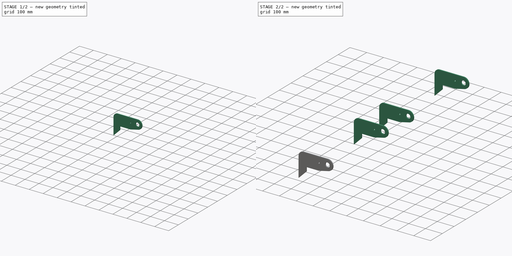
[diagram: build sequence overview — one tinted view per stage of 2, left to right]
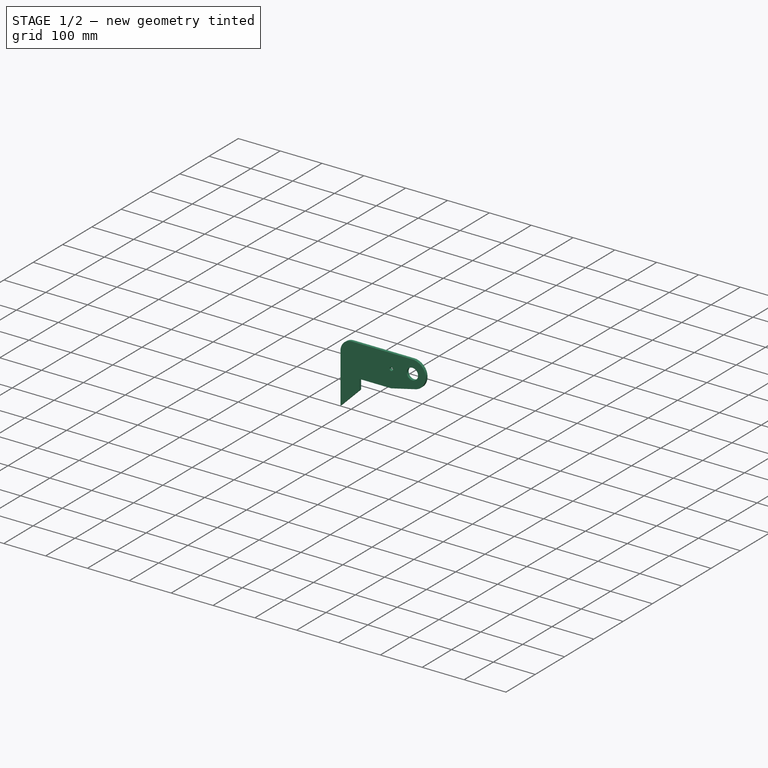
[diagram: stage 1 of 2 — iso view after this stage's code; geometry added in this stage tinted green]
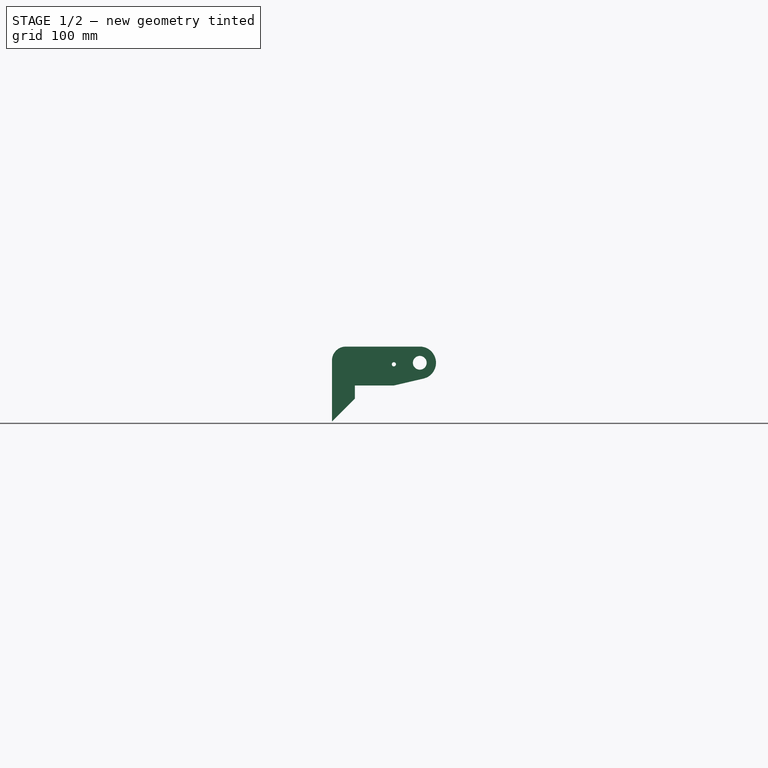
[diagram: stage 1 of 2 — front view after this stage's code; geometry added in this stage tinted green]
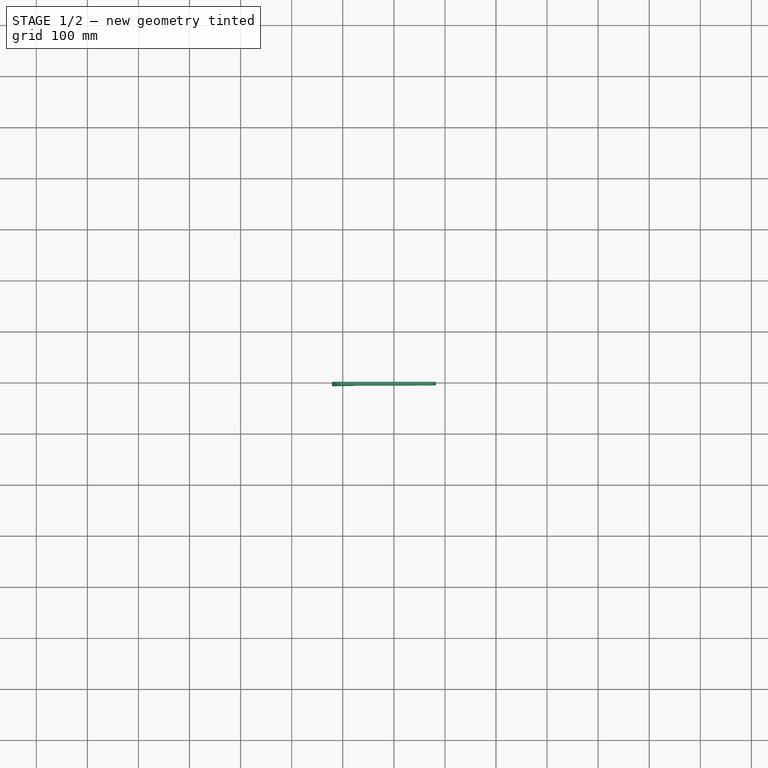
[diagram: stage 1 of 2 — top view after this stage's code; geometry added in this stage tinted green]
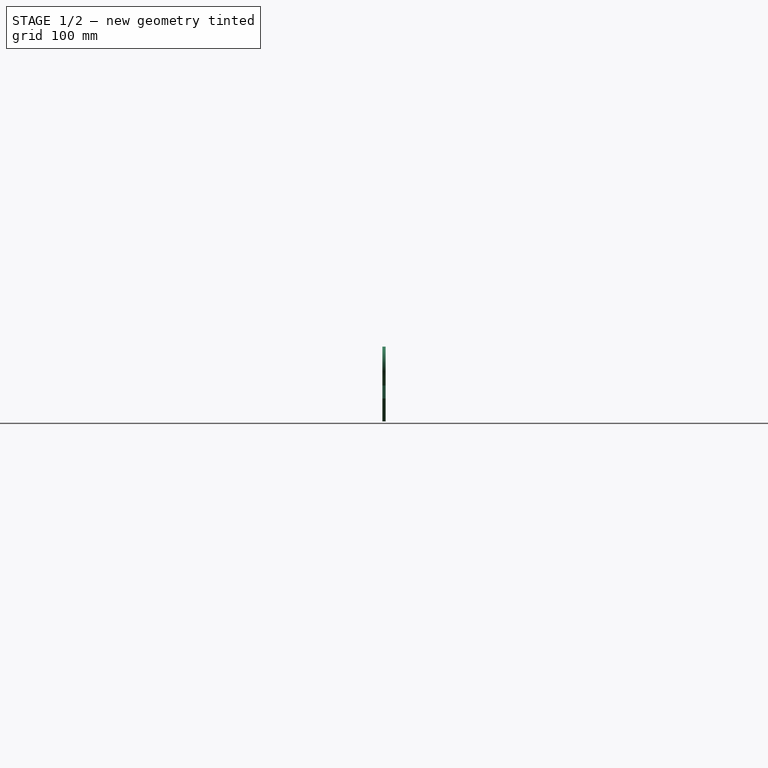
[diagram: stage 1 of 2 — right view after this stage's code; geometry added in this stage tinted green]
FCSTD DOCUMENT  (FreeCAD 0.17R13522 (Git))
Label: hinch
License: CreativeCommons Attribution
LicenseURL: http://creativecommons.org/licenses/by/4.0/
objects: Sketcher::SketchObject×1, PartDesign::Pad×1, PartDesign::Body×1, Part::FeaturePython×1
note: 5 computed .brp shape members not serialized (recipe doc carries the construction recipe); baked Part::Feature solids carry a one-line shape summary decoded from their .brp

FEATURE [Sketcher::SketchObject] Sketch  label="Hinch"
  MapMode = 5
  Placement = pos=(0,0,0) rot=(1,0,0;1.5708rad)
  sketch-geometry (10):
    g0: LineSegment StartX=-76.2 StartY=-25.4 StartZ=0 EndX=-76.2 EndY=0 EndZ=0
    g1: LineSegment StartX=-76.2 StartY=0 StartZ=0 EndX=0 EndY=0 EndZ=0
    g2: LineSegment StartX=0 StartY=0 StartZ=0 EndX=58.0114 EndY=13.5298 EndZ=0
    g3: ArcOfCircle CenterX=50.8 CenterY=44.45 CenterZ=0 NormalX=0 NormalY=0 NormalZ=1 AngleXU=0 Radius=31.75 StartAngle=4.94152 EndAngle=7.85398
    g4: LineSegment StartX=-121.101 StartY=-70.3013 StartZ=0 EndX=-76.2 EndY=-25.4 EndZ=0
    g5: Circle CenterX=50.8 CenterY=44.45 CenterZ=0 NormalX=0 NormalY=0 NormalZ=1 AngleXU=0 Radius=13.4938
    g6: LineSegment StartX=50.8 StartY=76.2 StartZ=0 EndX=-93.9161 EndY=76.2 EndZ=0
    g7: LineSegment StartX=-121.101 StartY=-70.3013 StartZ=0 EndX=-121.101 EndY=49.0148 EndZ=0
    g8: ArcOfCircle CenterX=-93.9161 CenterY=49.0148 CenterZ=0 NormalX=0 NormalY=0 NormalZ=1 AngleXU=0 Radius=27.1852 StartAngle=1.5708 EndAngle=3.14159
    g9: Circle CenterX=0.0835198 CenterY=41.5382 CenterZ=0 NormalX=0 NormalY=0 NormalZ=1 AngleXU=0 Radius=4.064
  constraints (25):
    c: Vertical(g0)
    c: Tangent(g2,g3) = -1.5708
    c: Coincident(g4,g0)
    c: Horizontal(g1)
    c: DistanceX(g1,g1) = 76.2
    c: Angle(g0,g4) = 2.35619
    c: Distance(g4) = 63.5
    c: Coincident(g-1,g1)
    c: Radius(g3) = 31.75
    c: Coincident(g5,g3)
    c: Radius(g5) = 13.4938
    c: DistanceX(g-1,g3) = 50.8
    c: Tangent(g6,g3) = -1.5708
    c: DistanceY(g-1,g3) = 44.45
    c: Coincident(g7,g4)
    c: Tangent(g6,g8) = -1.5708
    c: Tangent(g7,g8) = 1.5708
    c: Vertical(g7)
    c: Coincident(g0,g1)
    c: Coincident(g2,g-1)
    c: DistanceX(g8) = -93.9161
    c: DistanceY(g-1,g6) = 76.2
    c: Radius(g9) = 4.064
    c: Distance(g9,g3) = 50.8
    c: DistanceY(g0,g-1) = 25.4
FEATURE [PartDesign::Pad] Pad
  Length = 6.35
  Length2 = 100.076
  Placement = pos=(0,0,0) rot=(1,0,0;1.5708rad)
  Profile = -> Sketch
  Type = 0
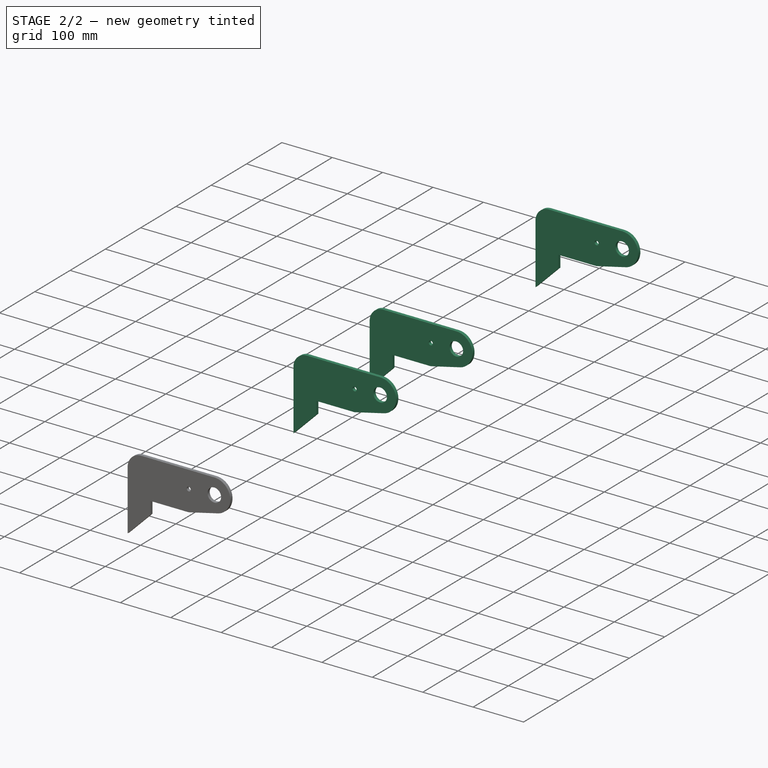
[diagram: stage 2 of 2 — iso view after this stage's code; geometry added in this stage tinted green]
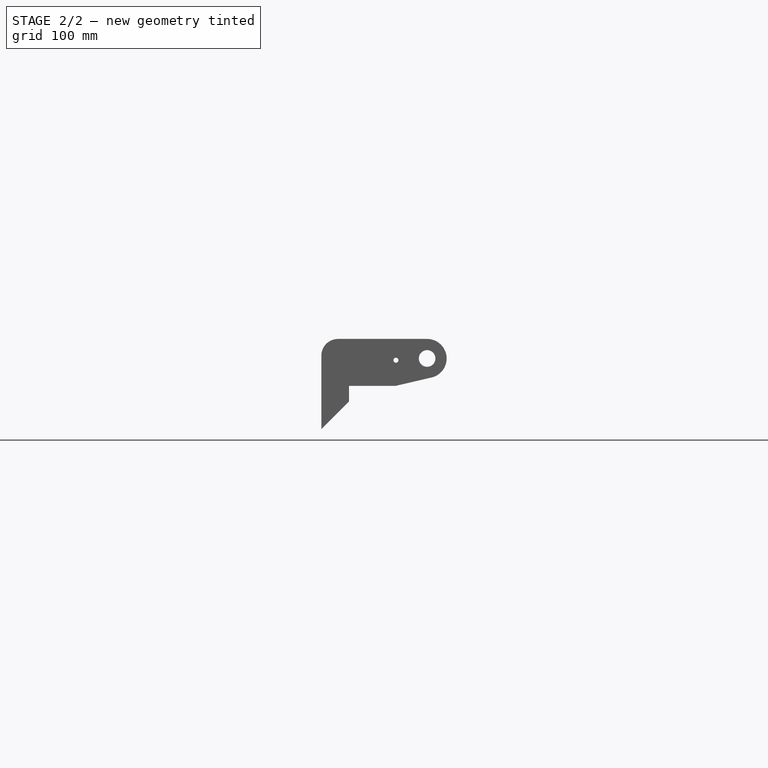
[diagram: stage 2 of 2 — front view after this stage's code; geometry added in this stage tinted green]
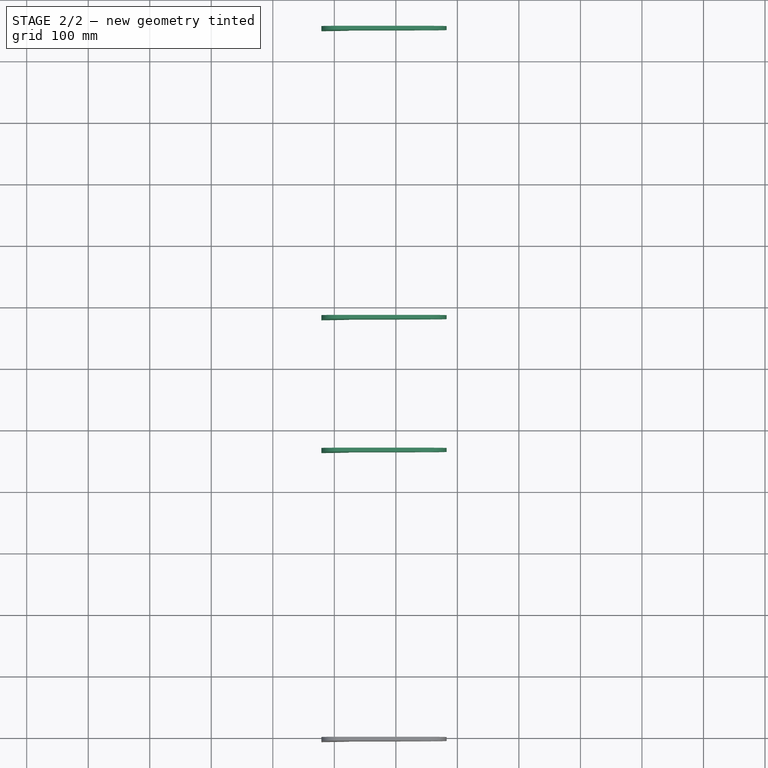
[diagram: stage 2 of 2 — top view after this stage's code; geometry added in this stage tinted green]
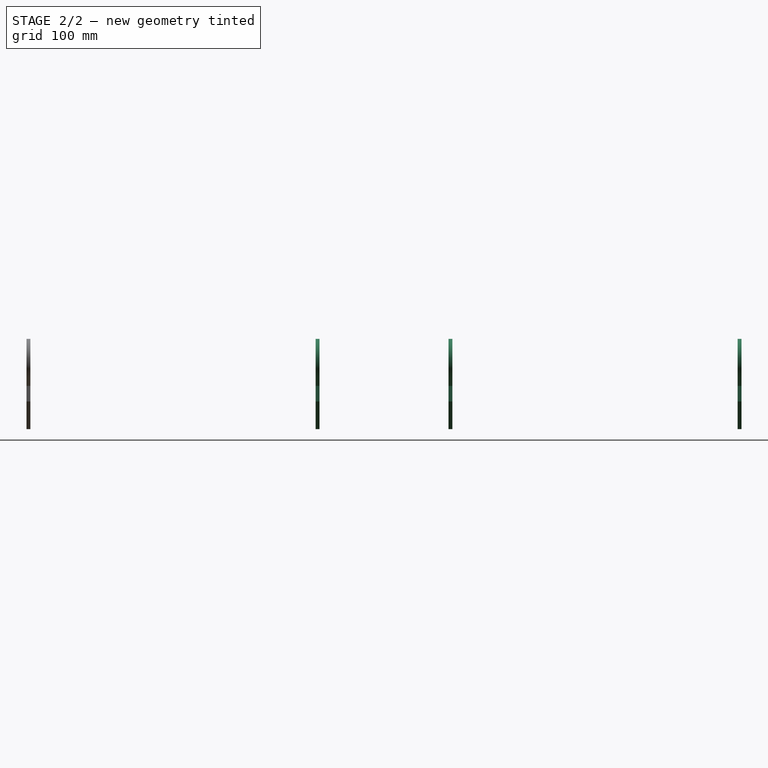
[diagram: stage 2 of 2 — right view after this stage's code; geometry added in this stage tinted green]
FEATURE [PartDesign::Body] Body
  Group = -> [Sketch,Pad]
  Origin = -> Origin
  Tip = -> Pad
FEATURE [Part::FeaturePython] Array  # Draft array (typed FeaturePython)
  Angle = 360
  ArrayType = 0
  Axis = (0,0,1)
  Base = -> Body
  Center = (0,0,0)
  Fuse = false
  IntervalAxis = (0,0,0)
  IntervalX = (0,469.9,0)
  IntervalY = (0,685.8,0)
  IntervalZ = (0,0,0)
  NumberPolar = 1
  NumberX = 2
  NumberY = 2
  NumberZ = 1
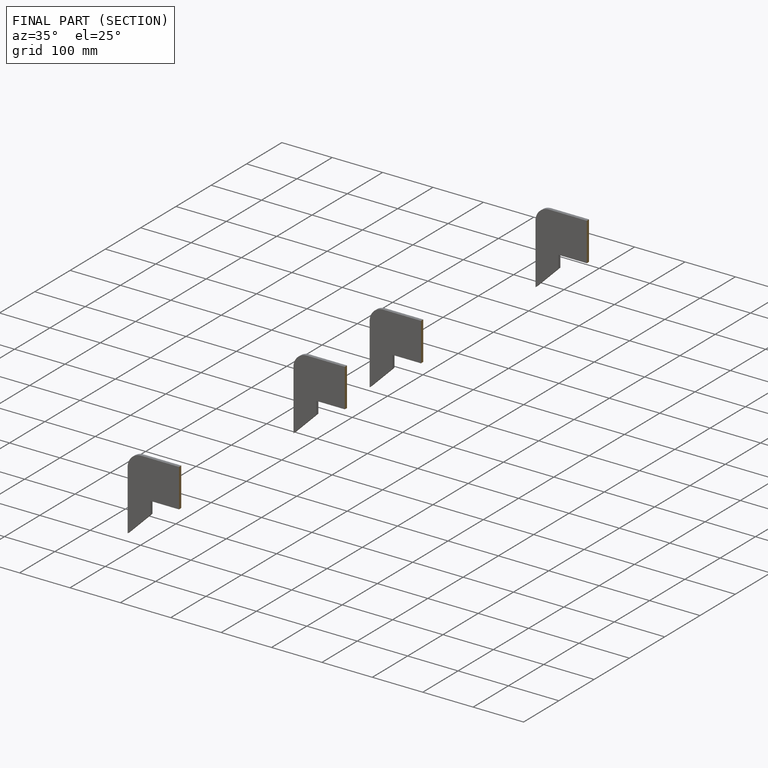
[diagram: finished part — half-section view (interior)]
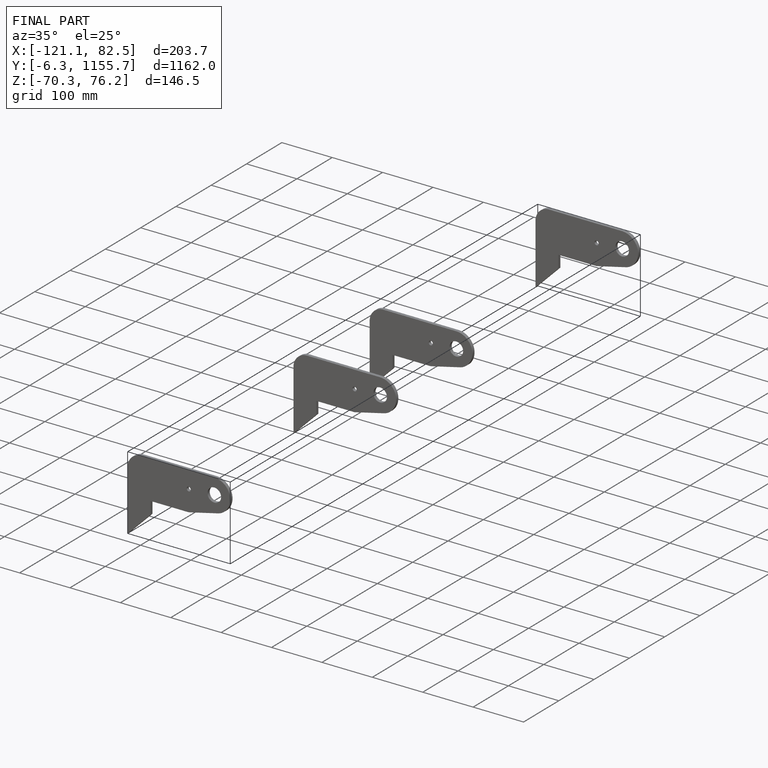
[diagram: finished part — iso view with bounding-box wireframe]
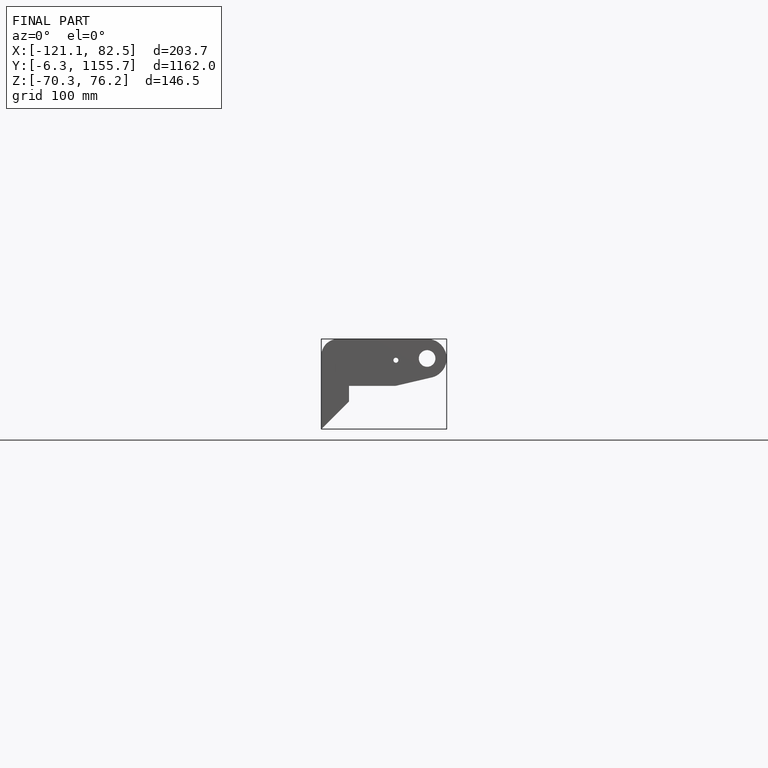
[diagram: finished part — front view with bounding-box wireframe]
